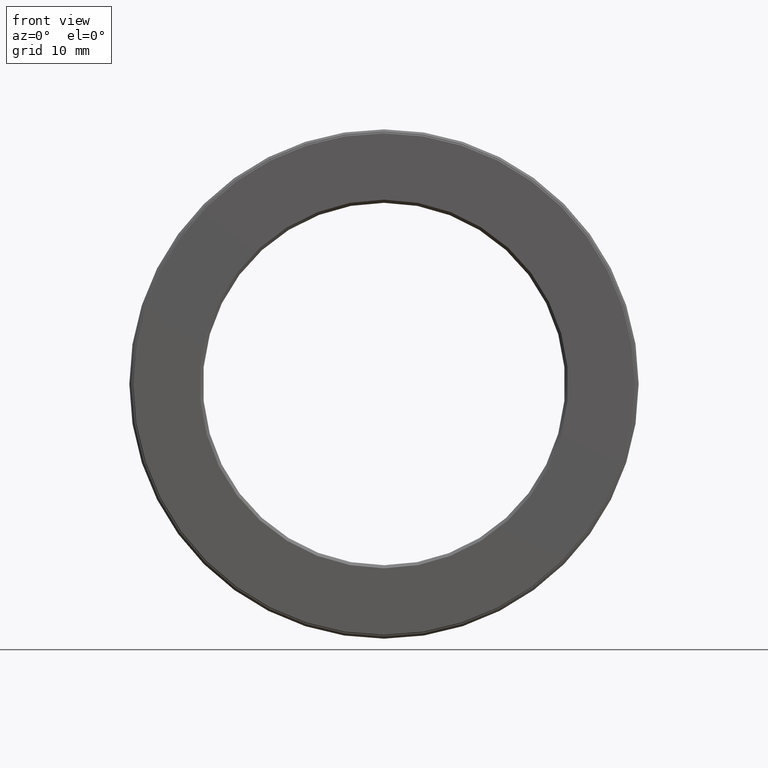
[diagram: clean part render]
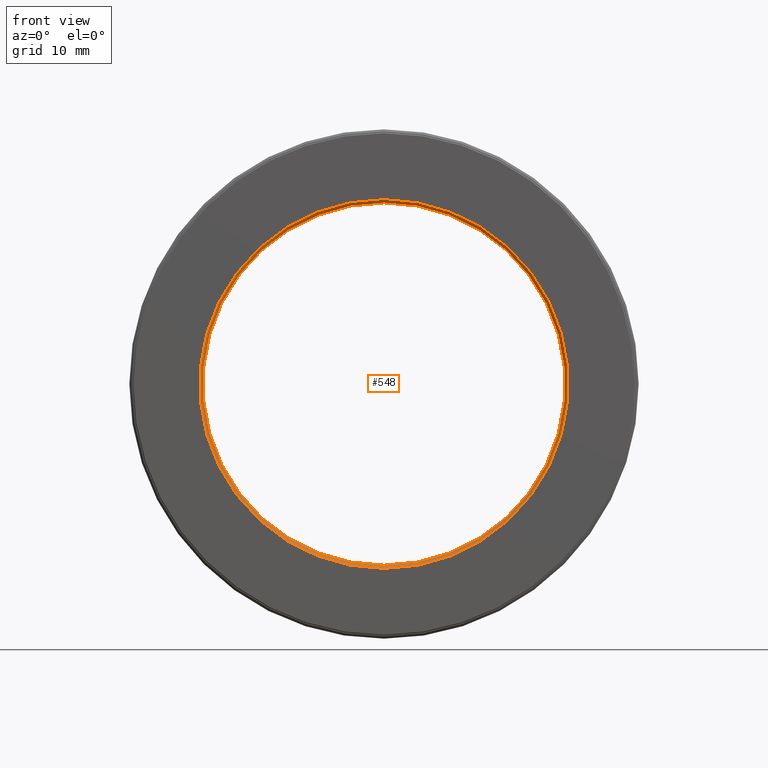
[diagram: same view with one face highlighted and labeled with its STEP entity id]
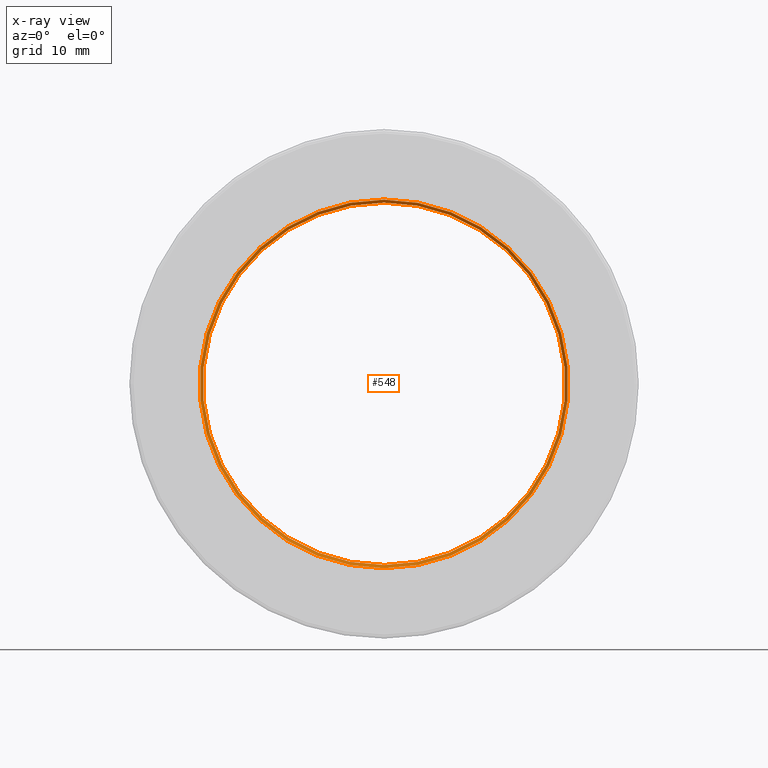
[diagram: x-ray of the same camera — body ghosted, the highlighted face saturated]
A machine part, front view. The second image highlights one B-rep face of the part: STEP entity #548.
The next image is the same camera in x-ray: the body ghosted, the highlighted face saturated — about 0% of this face is hidden behind the body in this view.
In plain terms, the highlighted conical surface has half-angle 45 deg.
Its self-contained STEP definition (entity closure, byte-faithful):
#22 = AXIS2_PLACEMENT_3D ( 'NONE', #276, #470, #578 ) ;
#45 = CARTESIAN_POINT ( 'NONE',  ( 0.0000000000000000000, 0.02000000000000019800, 1.156249999999999800 ) ) ;
#59 = DIRECTION ( 'NONE',  ( -0.0000000000000000000, 1.000000000000000000, -0.0000000000000000000 ) ) ;
#75 = CARTESIAN_POINT ( 'NONE',  ( 0.0000000000000000000, 0.0000000000000000000, 1.176250000000000000 ) ) ;
#101 = EDGE_CURVE ( 'NONE', #602, #602, #342, .T. ) ;
#108 = DIRECTION ( 'NONE',  ( 0.0000000000000000000, 0.0000000000000000000, 1.000000000000000000 ) ) ;
#117 = CARTESIAN_POINT ( 'NONE',  ( 0.0000000000000000000, 0.02000000000000019800, 0.0000000000000000000 ) ) ;
#129 = EDGE_LOOP ( 'NONE', ( #464 ) ) ;
#216 = VERTEX_POINT ( 'NONE', #75 ) ;
#231 = CONICAL_SURFACE ( 'NONE', #435, 1.156249999999999800, 0.7853981633974482800 ) ;
#245 = EDGE_LOOP ( 'NONE', ( #359 ) ) ;
#276 = CARTESIAN_POINT ( 'NONE',  ( 0.0000000000000000000, 0.02000000000000019800, 0.0000000000000000000 ) ) ;
#295 = FACE_BOUND ( 'NONE', #245, .T. ) ;
#326 = CIRCLE ( 'NONE', #412, 1.176250000000000000 ) ;
#342 = CIRCLE ( 'NONE', #22, 1.156249999999999800 ) ;
#359 = ORIENTED_EDGE ( 'NONE', *, *, #101, .T. ) ;
#385 = CARTESIAN_POINT ( 'NONE',  ( 0.0000000000000000000, 0.0000000000000000000, 0.0000000000000000000 ) ) ;
#396 = DIRECTION ( 'NONE',  ( 0.0000000000000000000, 0.0000000000000000000, -1.000000000000000000 ) ) ;
#412 = AXIS2_PLACEMENT_3D ( 'NONE', #385, #59, #108 ) ;
#435 = AXIS2_PLACEMENT_3D ( 'NONE', #117, #484, #396 ) ;
#443 = EDGE_CURVE ( 'NONE', #216, #216, #326, .T. ) ;
#464 = ORIENTED_EDGE ( 'NONE', *, *, #443, .F. ) ;
#470 = DIRECTION ( 'NONE',  ( -0.0000000000000000000, 1.000000000000000000, -0.0000000000000000000 ) ) ;
#484 = DIRECTION ( 'NONE',  ( 0.0000000000000000000, -1.000000000000000000, 0.0000000000000000000 ) ) ;
#548 = ADVANCED_FACE ( 'NONE', ( #605, #295 ), #231, .F. ) ;
#578 = DIRECTION ( 'NONE',  ( 0.0000000000000000000, 0.0000000000000000000, 1.000000000000000000 ) ) ;
#602 = VERTEX_POINT ( 'NONE', #45 ) ;
#605 = FACE_OUTER_BOUND ( 'NONE', #129, .T. ) ;